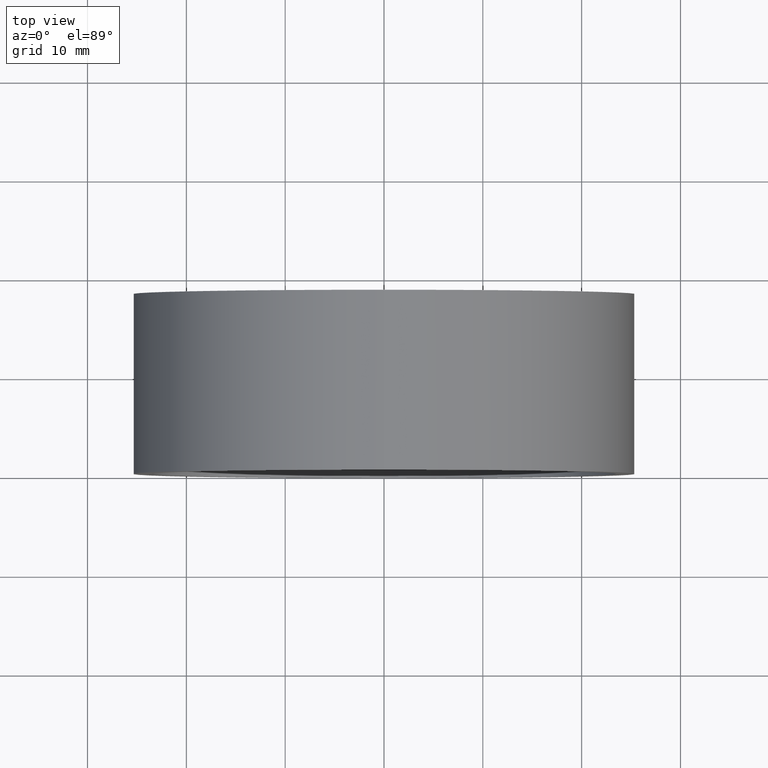
[diagram: clean part render]
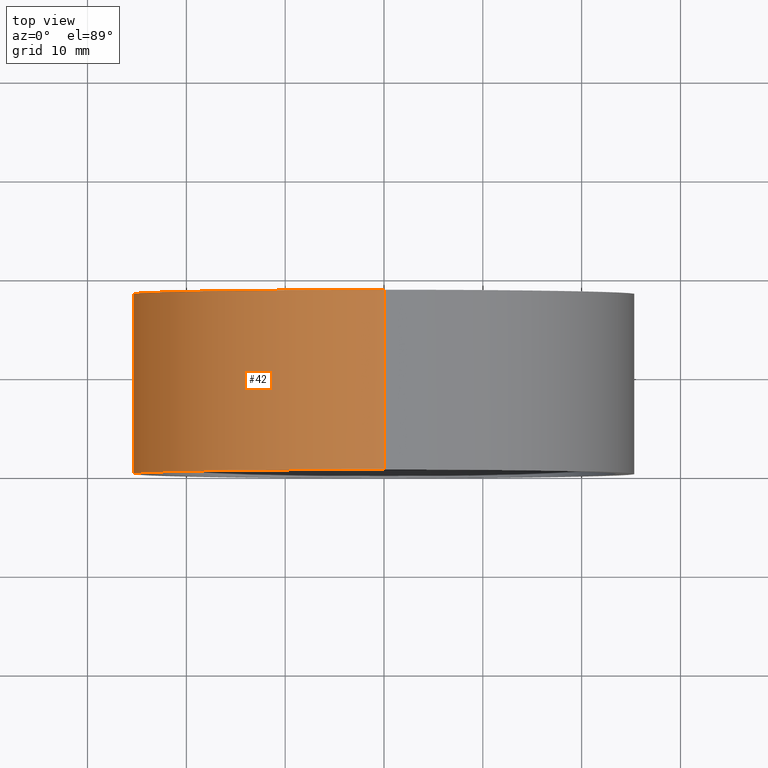
[diagram: same view with one face highlighted and labeled with its STEP entity id]
A machine part, top view. The second image highlights one B-rep face of the part: STEP entity #42.
In plain terms, the highlighted cylindrical surface (partial cylindrical patch) has radius 25.4 mm, axis along (-0, 1, -0).
Its self-contained STEP definition (entity closure, byte-faithful):
#1 = EDGE_LOOP ( 'NONE', ( #368, #516, #393, #479 ) ) ;
#15 = CARTESIAN_POINT ( 'NONE',  ( 0.0000000000000000000, 161.3761669434274500, 0.0000000000000000000 ) ) ;
#18 = CARTESIAN_POINT ( 'NONE',  ( 3.110602869834279600E-015, 18.19999999999996700, -25.40000000000002300 ) ) ;
#42 = ADVANCED_FACE ( 'NONE', ( #170 ), #296, .T. ) ;
#83 = CARTESIAN_POINT ( 'NONE',  ( 0.0000000000000000000, 161.3761669434274500, 25.40000000000001600 ) ) ;
#122 = AXIS2_PLACEMENT_3D ( 'NONE', #342, #435, #526 ) ;
#133 = DIRECTION ( 'NONE',  ( -0.0000000000000000000, 1.000000000000000000, -0.0000000000000000000 ) ) ;
#134 = AXIS2_PLACEMENT_3D ( 'NONE', #592, #314, #317 ) ;
#148 = CIRCLE ( 'NONE', #134, 25.40000000000001300 ) ;
#155 = VERTEX_POINT ( 'NONE', #229 ) ;
#167 = CARTESIAN_POINT ( 'NONE',  ( 3.110602869834278800E-015, 161.3761669434274500, -25.40000000000001600 ) ) ;
#168 = DIRECTION ( 'NONE',  ( -0.0000000000000000000, 1.000000000000000000, -0.0000000000000000000 ) ) ;
#170 = FACE_OUTER_BOUND ( 'NONE', #1, .T. ) ;
#186 = CIRCLE ( 'NONE', #122, 25.40000000000002000 ) ;
#195 = VECTOR ( 'NONE', #539, 1000.000000000000000 ) ;
#204 = DIRECTION ( 'NONE',  ( 0.0000000000000000000, 0.0000000000000000000, 1.000000000000000000 ) ) ;
#229 = CARTESIAN_POINT ( 'NONE',  ( 3.110602869834278800E-015, -2.775557561562891400E-014, -25.40000000000001300 ) ) ;
#296 = CYLINDRICAL_SURFACE ( 'NONE', #583, 25.40000000000001600 ) ;
#314 = DIRECTION ( 'NONE',  ( -0.0000000000000000000, 1.000000000000000000, -0.0000000000000000000 ) ) ;
#317 = DIRECTION ( 'NONE',  ( 0.0000000000000000000, 0.0000000000000000000, 1.000000000000000000 ) ) ;
#327 = EDGE_CURVE ( 'NONE', #359, #497, #186, .T. ) ;
#342 = CARTESIAN_POINT ( 'NONE',  ( 0.0000000000000000000, 18.19999999999996700, 0.0000000000000000000 ) ) ;
#353 = VERTEX_POINT ( 'NONE', #612 ) ;
#359 = VERTEX_POINT ( 'NONE', #18 ) ;
#364 = CARTESIAN_POINT ( 'NONE',  ( 0.0000000000000000000, 18.19999999999996700, 25.40000000000002000 ) ) ;
#368 = ORIENTED_EDGE ( 'NONE', *, *, #488, .F. ) ;
#379 = VECTOR ( 'NONE', #133, 1000.000000000000000 ) ;
#393 = ORIENTED_EDGE ( 'NONE', *, *, #597, .T. ) ;
#399 = EDGE_CURVE ( 'NONE', #155, #353, #148, .T. ) ;
#435 = DIRECTION ( 'NONE',  ( -0.0000000000000000000, 1.000000000000000000, -0.0000000000000000000 ) ) ;
#479 = ORIENTED_EDGE ( 'NONE', *, *, #327, .F. ) ;
#488 = EDGE_CURVE ( 'NONE', #155, #359, #611, .T. ) ;
#497 = VERTEX_POINT ( 'NONE', #364 ) ;
#516 = ORIENTED_EDGE ( 'NONE', *, *, #399, .T. ) ;
#526 = DIRECTION ( 'NONE',  ( 0.0000000000000000000, 0.0000000000000000000, 1.000000000000000000 ) ) ;
#539 = DIRECTION ( 'NONE',  ( -0.0000000000000000000, 1.000000000000000000, -0.0000000000000000000 ) ) ;
#583 = AXIS2_PLACEMENT_3D ( 'NONE', #15, #168, #204 ) ;
#592 = CARTESIAN_POINT ( 'NONE',  ( 0.0000000000000000000, -2.775557561562891400E-014, 0.0000000000000000000 ) ) ;
#597 = EDGE_CURVE ( 'NONE', #353, #497, #605, .T. ) ;
#605 = LINE ( 'NONE', #83, #379 ) ;
#611 = LINE ( 'NONE', #167, #195 ) ;
#612 = CARTESIAN_POINT ( 'NONE',  ( 0.0000000000000000000, -2.775557561562891400E-014, 25.40000000000001300 ) ) ;